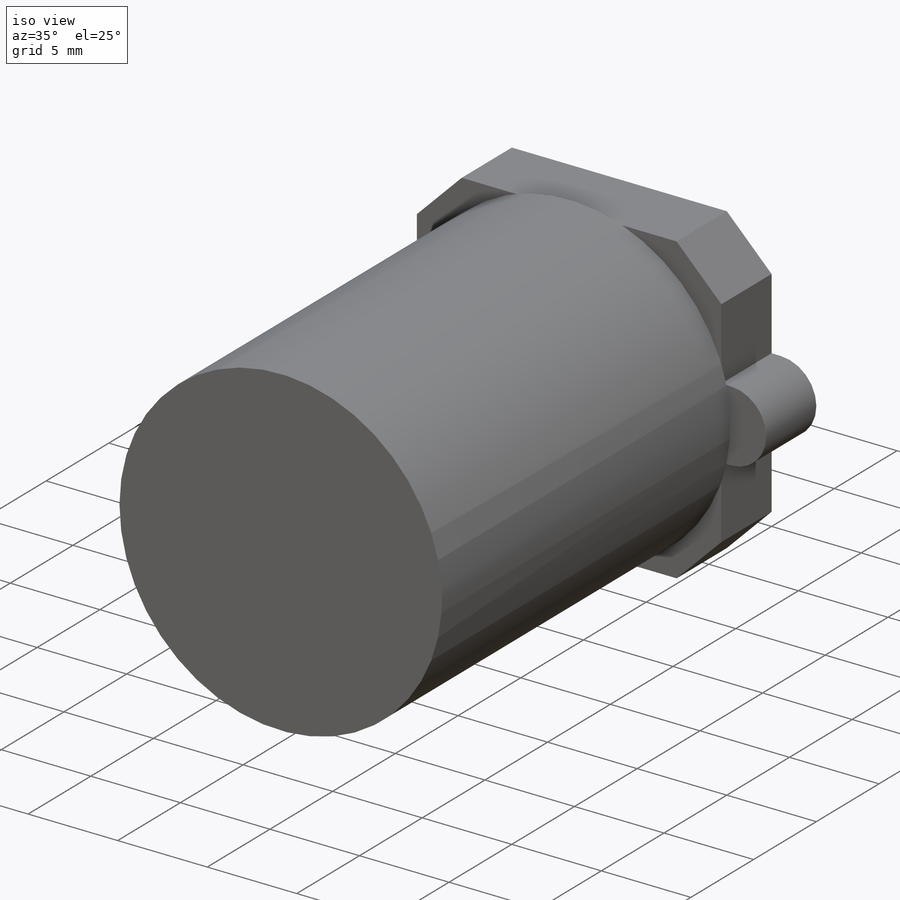
[diagram: iso view]
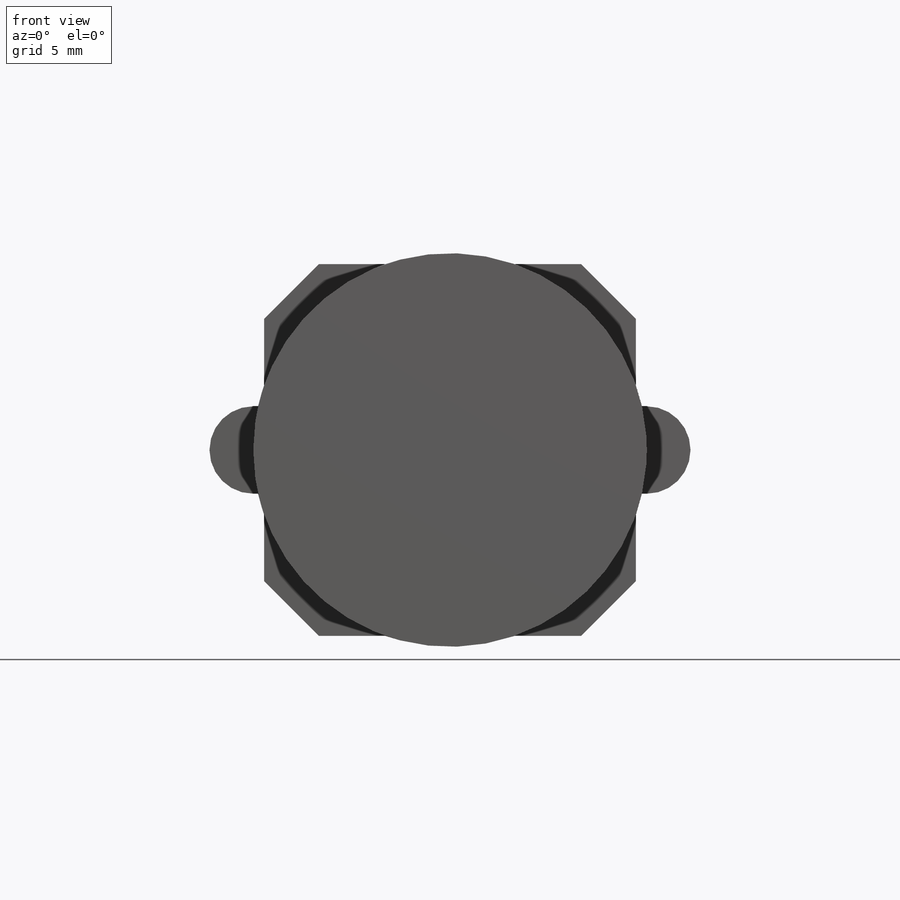
[diagram: front view]
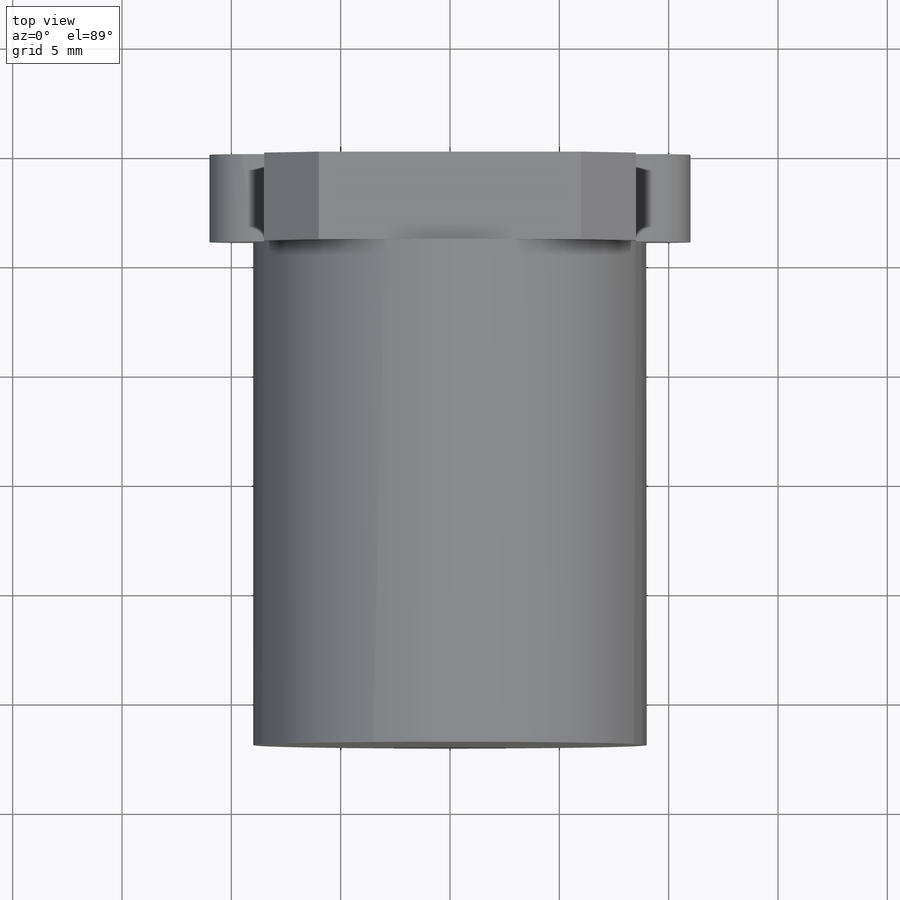
[diagram: top view]
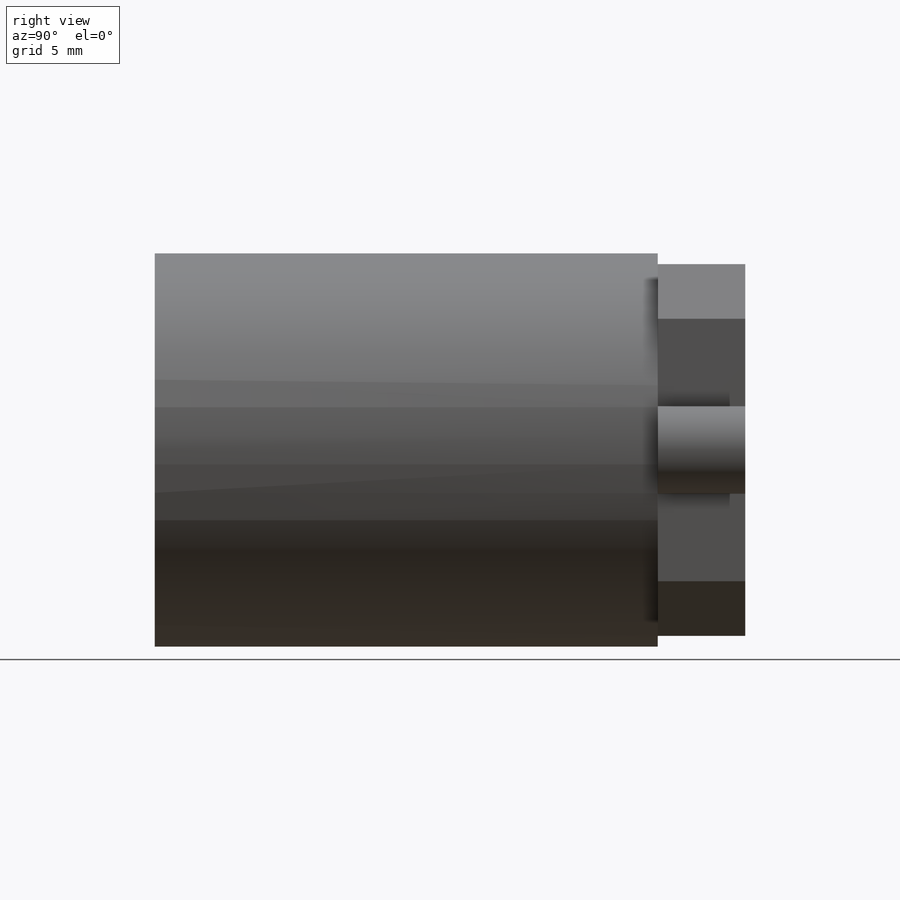
[diagram: right view]
SOLIDWORKS PART (.sldprt)
format: sldprt  version: not decoded by parser v0  size: 184,832 bytes
history: native  units: mm
features: sketch x4, extrude x3, material x1, chamfer x1, mirror x1 (+11 scaffold rows collapsed)
feature tree (21):
  scaffold x11  (default folders/planes/origin — collapsed)
  material  "Material <not specified>"
  sketch  "Sketch1"  dims[D1=17.0mm D2=17.0mm]
  extrude  "Boss-Extrude1"  Depth=4mm
  chamfer  "Chamfer1"  Distance=2.5mm Angle=45deg
  sketch  "Sketch3"  dims[D1=4.0mm D2=2.0mm D3=0.5mm]
  extrude  "Boss-Extrude3"  [1 undecoded]
  mirror  "Mirror1"
  sketch  "Sketch2"  dims[D1=18.0mm]
  extrude  "Boss-Extrude2"  Depth=23mm
  sketch  "Sketch4"
decode coverage: 6 of 9 modeling features carry decoded parameters
note: 1 parameter value undecoded
note: suppression state not decoded; provenance and decode notes live in map.json
